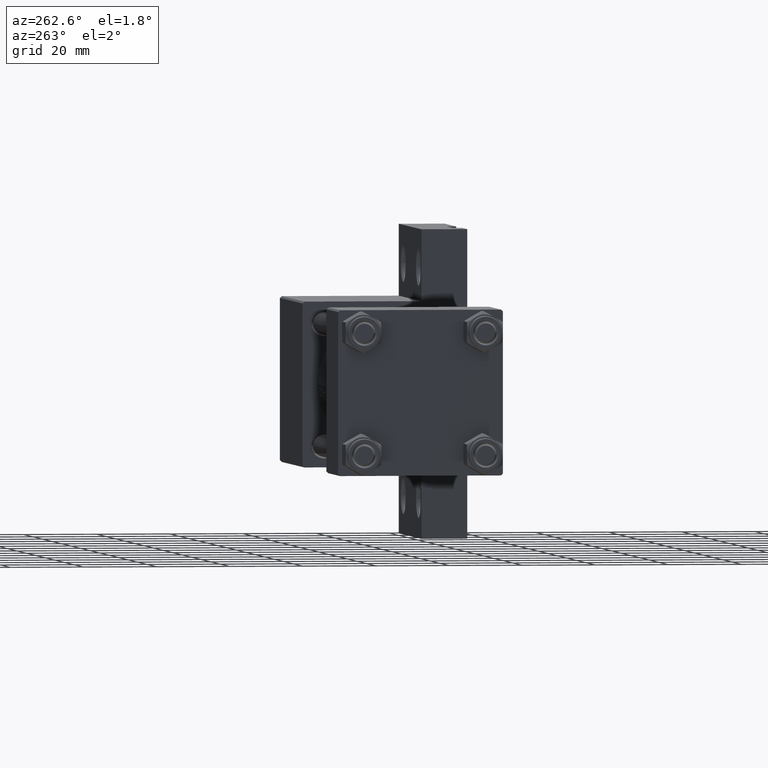
[diagram: clean part render]
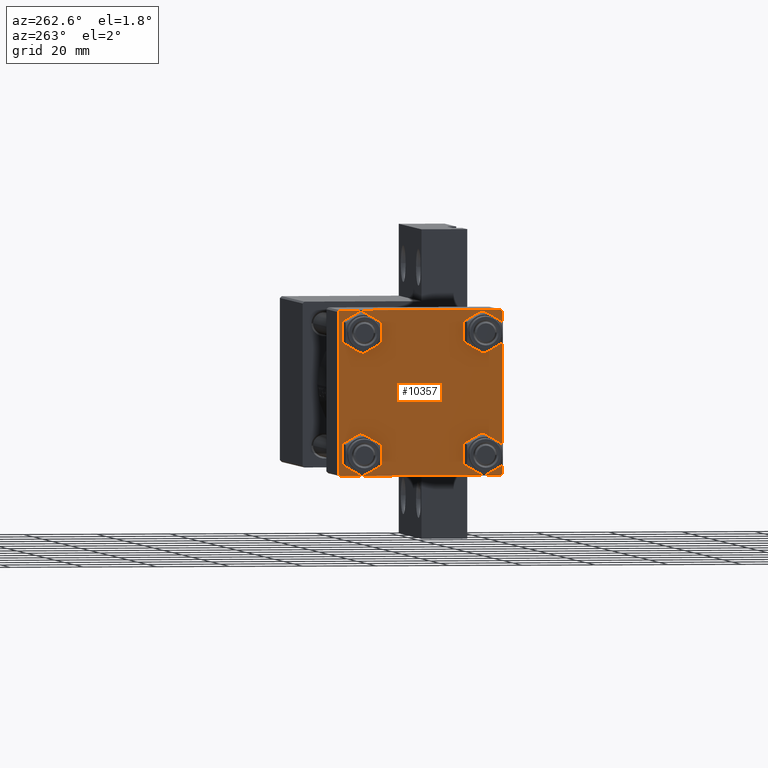
[diagram: same view with one face highlighted and labeled with its STEP entity id]
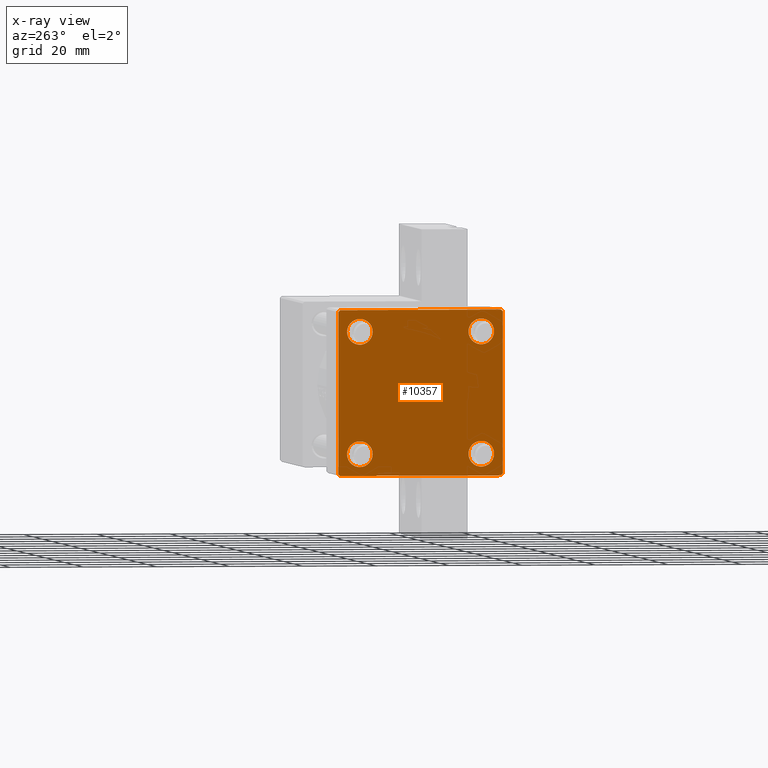
[diagram: x-ray of the same camera — body ghosted, the highlighted face saturated]
A machine part, auxiliary view. The second image highlights one B-rep face of the part: STEP entity #10357.
The next image is the same camera in x-ray: the body ghosted, the highlighted face saturated — about 0% of this face is hidden behind the body in this view.
In plain terms, the highlighted planar face has unit normal (-1, 0, -0).
Its self-contained STEP definition (entity closure, byte-faithful):
#89 = CARTESIAN_POINT ( 'NONE',  ( 0.000000000000000000, 0.000000000000000000, 0.000000000000000000 ) ) ;
#125 = CARTESIAN_POINT ( 'NONE',  ( 0.000000000000000000, 16.59999999999999787, 16.60000000000000497 ) ) ;
#600 = AXIS2_PLACEMENT_3D ( 'NONE', #10204, #14349, #39929 ) ;
#1617 = VECTOR ( 'NONE', #31725, 1000.000000000000000 ) ;
#1873 = ORIENTED_EDGE ( 'NONE', *, *, #11211, .T. ) ;
#2253 = ORIENTED_EDGE ( 'NONE', *, *, #7017, .T. ) ;
#2759 = ORIENTED_EDGE ( 'NONE', *, *, #17640, .T. ) ;
#3006 = EDGE_CURVE ( 'NONE', #33302, #35933, #30662, .T. ) ;
#3169 = VERTEX_POINT ( 'NONE', #43528 ) ;
#4080 = VECTOR ( 'NONE', #4355, 1000.000000000000000 ) ;
#4355 = DIRECTION ( 'NONE',  ( 0.000000000000000000, -0.7071067811865426878, 0.7071067811865524577 ) ) ;
#4741 = ORIENTED_EDGE ( 'NONE', *, *, #3006, .T. ) ;
#4862 = CARTESIAN_POINT ( 'NONE',  ( 0.000000000000000000, -16.59999999999999076, -16.60000000000000853 ) ) ;
#4898 = LINE ( 'NONE', #35095, #19236 ) ;
#5266 = CARTESIAN_POINT ( 'NONE',  ( 0.000000000000000000, 22.50000000000000000, -21.99999999999996803 ) ) ;
#5617 = VERTEX_POINT ( 'NONE', #36906 ) ;
#6101 = CIRCLE ( 'NONE', #33339, 3.499999999999996003 ) ;
#6234 = VERTEX_POINT ( 'NONE', #5266 ) ;
#7017 = EDGE_CURVE ( 'NONE', #15912, #12933, #8506, .T. ) ;
#7386 = CARTESIAN_POINT ( 'NONE',  ( 0.000000000000000000, 21.99999999999999289, -22.49999999999999645 ) ) ;
#7435 = DIRECTION ( 'NONE',  ( 0.000000000000000000, 0.000000000000000000, 1.000000000000000000 ) ) ;
#7713 = ORIENTED_EDGE ( 'NONE', *, *, #29443, .T. ) ;
#8506 = CIRCLE ( 'NONE', #11641, 3.499999999999996003 ) ;
#8738 = CARTESIAN_POINT ( 'NONE',  ( 0.000000000000000000, 22.24999999999999645, 22.24999999999999645 ) ) ;
#9051 = CARTESIAN_POINT ( 'NONE',  ( 0.000000000000000000, 16.59999999999999787, -13.10000000000000675 ) ) ;
#9585 = CARTESIAN_POINT ( 'NONE',  ( 0.000000000000000000, -16.59999999999999076, 16.60000000000000853 ) ) ;
#10204 = CARTESIAN_POINT ( 'NONE',  ( 0.000000000000000000, -16.59999999999999076, 16.60000000000000853 ) ) ;
#10342 = CARTESIAN_POINT ( 'NONE',  ( 0.000000000000000000, -16.59999999999999076, -16.60000000000000853 ) ) ;
#10357 = ADVANCED_FACE ( 'NONE', ( #30290, #33950, #45139, #33717, #18615 ), #44426, .T. ) ;
#10771 = CARTESIAN_POINT ( 'NONE',  ( 0.000000000000000000, -22.50000000000000000, -21.99999999999997158 ) ) ;
#10806 = AXIS2_PLACEMENT_3D ( 'NONE', #9585, #24456, #35652 ) ;
#10923 = EDGE_LOOP ( 'NONE', ( #1873, #2759 ) ) ;
#10977 = ORIENTED_EDGE ( 'NONE', *, *, #41991, .F. ) ;
#11211 = EDGE_CURVE ( 'NONE', #3169, #22177, #23306, .T. ) ;
#11219 = CIRCLE ( 'NONE', #33000, 3.499999999999996003 ) ;
#11292 = DIRECTION ( 'NONE',  ( -1.000000000000000000, 0.000000000000000000, -0.000000000000000000 ) ) ;
#11641 = AXIS2_PLACEMENT_3D ( 'NONE', #46806, #35841, #13443 ) ;
#12658 = CARTESIAN_POINT ( 'NONE',  ( 0.000000000000000000, -21.99999999999997158, -22.50000000000000711 ) ) ;
#12933 = VERTEX_POINT ( 'NONE', #9051 ) ;
#13041 = CARTESIAN_POINT ( 'NONE',  ( 0.000000000000000000, 16.59999999999999787, -16.60000000000000497 ) ) ;
#13280 = DIRECTION ( 'NONE',  ( 0.000000000000000000, 0.000000000000000000, 1.000000000000000000 ) ) ;
#13443 = DIRECTION ( 'NONE',  ( 0.000000000000000000, 0.000000000000000000, 1.000000000000000000 ) ) ;
#13521 = DIRECTION ( 'NONE',  ( 1.000000000000000000, -0.000000000000000000, 0.000000000000000000 ) ) ;
#14349 = DIRECTION ( 'NONE',  ( 1.000000000000000000, -0.000000000000000000, 0.000000000000000000 ) ) ;
#14595 = EDGE_CURVE ( 'NONE', #5617, #33031, #11219, .T. ) ;
#14967 = DIRECTION ( 'NONE',  ( -0.000000000000000000, 0.000000000000000000, 1.000000000000000000 ) ) ;
#15185 = CARTESIAN_POINT ( 'NONE',  ( 0.000000000000000000, -21.99999999999997868, 22.50000000000000000 ) ) ;
#15912 = VERTEX_POINT ( 'NONE', #40742 ) ;
#16346 = EDGE_CURVE ( 'NONE', #31173, #30288, #17018, .T. ) ;
#16812 = DIRECTION ( 'NONE',  ( 1.000000000000000000, -0.000000000000000000, 0.000000000000000000 ) ) ;
#16837 = ORIENTED_EDGE ( 'NONE', *, *, #18199, .F. ) ;
#16901 = CARTESIAN_POINT ( 'NONE',  ( 0.000000000000000000, 16.59999999999999787, 20.10000000000000142 ) ) ;
#17018 = LINE ( 'NONE', #8738, #20585 ) ;
#17385 = DIRECTION ( 'NONE',  ( -0.000000000000000000, 0.7071067811865525687, 0.7071067811865425767 ) ) ;
#17467 = CIRCLE ( 'NONE', #20551, 3.499999999999996003 ) ;
#17640 = EDGE_CURVE ( 'NONE', #22177, #3169, #17467, .T. ) ;
#17863 = CIRCLE ( 'NONE', #10806, 3.499999999999996003 ) ;
#18033 = VERTEX_POINT ( 'NONE', #15185 ) ;
#18199 = EDGE_CURVE ( 'NONE', #31173, #18033, #24088, .T. ) ;
#18615 = FACE_OUTER_BOUND ( 'NONE', #29921, .T. ) ;
#18694 = ORIENTED_EDGE ( 'NONE', *, *, #33966, .T. ) ;
#19236 = VECTOR ( 'NONE', #27301, 1000.000000000000000 ) ;
#19728 = DIRECTION ( 'NONE',  ( 1.000000000000000000, -0.000000000000000000, 0.000000000000000000 ) ) ;
#19914 = CARTESIAN_POINT ( 'NONE',  ( 0.000000000000000000, -16.59999999999999076, -20.10000000000000497 ) ) ;
#19972 = CARTESIAN_POINT ( 'NONE',  ( 0.000000000000000000, 16.59999999999999787, 16.60000000000000497 ) ) ;
#20284 = VERTEX_POINT ( 'NONE', #7386 ) ;
#20407 = ORIENTED_EDGE ( 'NONE', *, *, #30701, .T. ) ;
#20551 = AXIS2_PLACEMENT_3D ( 'NONE', #10342, #21323, #40306 ) ;
#20585 = VECTOR ( 'NONE', #32109, 1000.000000000000114 ) ;
#20615 = EDGE_CURVE ( 'NONE', #30288, #6234, #34359, .T. ) ;
#20775 = AXIS2_PLACEMENT_3D ( 'NONE', #125, #21564, #7435 ) ;
#21052 = AXIS2_PLACEMENT_3D ( 'NONE', #89, #11292, #14967 ) ;
#21323 = DIRECTION ( 'NONE',  ( 1.000000000000000000, -0.000000000000000000, 0.000000000000000000 ) ) ;
#21382 = VERTEX_POINT ( 'NONE', #23205 ) ;
#21386 = EDGE_LOOP ( 'NONE', ( #40497, #2253 ) ) ;
#21564 = DIRECTION ( 'NONE',  ( 1.000000000000000000, -0.000000000000000000, 0.000000000000000000 ) ) ;
#22177 = VERTEX_POINT ( 'NONE', #19914 ) ;
#22751 = DIRECTION ( 'NONE',  ( 0.000000000000000000, -1.000000000000000000, -2.312964634635742957E-16 ) ) ;
#23205 = CARTESIAN_POINT ( 'NONE',  ( 0.000000000000000000, -16.59999999999999076, 13.10000000000001030 ) ) ;
#23306 = CIRCLE ( 'NONE', #37331, 3.499999999999996003 ) ;
#23319 = CARTESIAN_POINT ( 'NONE',  ( 0.000000000000000000, 22.50000000000000000, 21.99999999999999645 ) ) ;
#23842 = EDGE_CURVE ( 'NONE', #6234, #20284, #4898, .T. ) ;
#24088 = LINE ( 'NONE', #39673, #27534 ) ;
#24351 = ORIENTED_EDGE ( 'NONE', *, *, #20615, .T. ) ;
#24363 = EDGE_CURVE ( 'NONE', #20284, #33302, #25669, .T. ) ;
#24456 = DIRECTION ( 'NONE',  ( 1.000000000000000000, -0.000000000000000000, 0.000000000000000000 ) ) ;
#24582 = EDGE_CURVE ( 'NONE', #31371, #18033, #43423, .T. ) ;
#24583 = DIRECTION ( 'NONE',  ( 0.000000000000000000, 0.000000000000000000, 1.000000000000000000 ) ) ;
#25669 = LINE ( 'NONE', #26162, #47969 ) ;
#26076 = CARTESIAN_POINT ( 'NONE',  ( 0.000000000000000000, 22.50000000000000000, 22.50000000000000355 ) ) ;
#26162 = CARTESIAN_POINT ( 'NONE',  ( 0.000000000000000000, 22.50000000000000000, -22.49999999999999645 ) ) ;
#27301 = DIRECTION ( 'NONE',  ( -0.000000000000000000, -0.7071067811865426878, -0.7071067811865524577 ) ) ;
#27534 = VECTOR ( 'NONE', #31653, 1000.000000000000000 ) ;
#29443 = EDGE_CURVE ( 'NONE', #33031, #5617, #35550, .T. ) ;
#29567 = EDGE_LOOP ( 'NONE', ( #7713, #39388 ) ) ;
#29921 = EDGE_LOOP ( 'NONE', ( #24351, #33670, #39376, #4741, #10977, #43192, #16837, #44833 ) ) ;
#30244 = CARTESIAN_POINT ( 'NONE',  ( 0.000000000000000000, -16.59999999999999076, 20.10000000000000853 ) ) ;
#30288 = VERTEX_POINT ( 'NONE', #23319 ) ;
#30290 = FACE_BOUND ( 'NONE', #41875, .T. ) ;
#30662 = LINE ( 'NONE', #42103, #4080 ) ;
#30701 = EDGE_CURVE ( 'NONE', #21382, #42745, #43407, .T. ) ;
#31173 = VERTEX_POINT ( 'NONE', #37064 ) ;
#31371 = VERTEX_POINT ( 'NONE', #35332 ) ;
#31653 = DIRECTION ( 'NONE',  ( 0.000000000000000000, -1.000000000000000000, -7.709882115452476934E-17 ) ) ;
#31725 = DIRECTION ( 'NONE',  ( 0.000000000000000000, 0.000000000000000000, -1.000000000000000000 ) ) ;
#31908 = EDGE_CURVE ( 'NONE', #12933, #15912, #6101, .T. ) ;
#32109 = DIRECTION ( 'NONE',  ( 0.000000000000000000, 0.7071067811865474617, -0.7071067811865474617 ) ) ;
#33000 = AXIS2_PLACEMENT_3D ( 'NONE', #19972, #16812, #24583 ) ;
#33031 = VERTEX_POINT ( 'NONE', #16901 ) ;
#33302 = VERTEX_POINT ( 'NONE', #12658 ) ;
#33339 = AXIS2_PLACEMENT_3D ( 'NONE', #13041, #13521, #13280 ) ;
#33670 = ORIENTED_EDGE ( 'NONE', *, *, #23842, .T. ) ;
#33717 = FACE_BOUND ( 'NONE', #29567, .T. ) ;
#33950 = FACE_BOUND ( 'NONE', #10923, .T. ) ;
#33966 = EDGE_CURVE ( 'NONE', #42745, #21382, #17863, .T. ) ;
#34119 = DIRECTION ( 'NONE',  ( 0.000000000000000000, 0.000000000000000000, -1.000000000000000000 ) ) ;
#34359 = LINE ( 'NONE', #26076, #36181 ) ;
#35095 = CARTESIAN_POINT ( 'NONE',  ( 0.000000000000000000, 22.25000000000014566, -22.24999999999984013 ) ) ;
#35332 = CARTESIAN_POINT ( 'NONE',  ( 0.000000000000000000, -22.50000000000000000, 22.00000000000000000 ) ) ;
#35550 = CIRCLE ( 'NONE', #20775, 3.499999999999996003 ) ;
#35652 = DIRECTION ( 'NONE',  ( 0.000000000000000000, 0.000000000000000000, 1.000000000000000000 ) ) ;
#35841 = DIRECTION ( 'NONE',  ( 1.000000000000000000, -0.000000000000000000, 0.000000000000000000 ) ) ;
#35933 = VERTEX_POINT ( 'NONE', #10771 ) ;
#36181 = VECTOR ( 'NONE', #34119, 1000.000000000000000 ) ;
#36906 = CARTESIAN_POINT ( 'NONE',  ( 0.000000000000000000, 16.59999999999999787, 13.10000000000000675 ) ) ;
#37064 = CARTESIAN_POINT ( 'NONE',  ( 0.000000000000000000, 21.99999999999999289, 22.50000000000000355 ) ) ;
#37331 = AXIS2_PLACEMENT_3D ( 'NONE', #4862, #19728, #41895 ) ;
#39376 = ORIENTED_EDGE ( 'NONE', *, *, #24363, .T. ) ;
#39388 = ORIENTED_EDGE ( 'NONE', *, *, #14595, .T. ) ;
#39673 = CARTESIAN_POINT ( 'NONE',  ( 0.000000000000000000, 22.50000000000000000, 22.50000000000000355 ) ) ;
#39929 = DIRECTION ( 'NONE',  ( 0.000000000000000000, 0.000000000000000000, 1.000000000000000000 ) ) ;
#40306 = DIRECTION ( 'NONE',  ( 0.000000000000000000, 0.000000000000000000, 1.000000000000000000 ) ) ;
#40497 = ORIENTED_EDGE ( 'NONE', *, *, #31908, .T. ) ;
#40742 = CARTESIAN_POINT ( 'NONE',  ( 0.000000000000000000, 16.59999999999999787, -20.10000000000000142 ) ) ;
#41875 = EDGE_LOOP ( 'NONE', ( #18694, #20407 ) ) ;
#41895 = DIRECTION ( 'NONE',  ( 0.000000000000000000, 0.000000000000000000, 1.000000000000000000 ) ) ;
#41991 = EDGE_CURVE ( 'NONE', #31371, #35933, #42687, .T. ) ;
#42103 = CARTESIAN_POINT ( 'NONE',  ( 0.000000000000000000, -22.25000000000014566, -22.24999999999984013 ) ) ;
#42687 = LINE ( 'NONE', #43172, #1617 ) ;
#42745 = VERTEX_POINT ( 'NONE', #30244 ) ;
#43172 = CARTESIAN_POINT ( 'NONE',  ( 0.000000000000000000, -22.50000000000000000, 22.50000000000000000 ) ) ;
#43192 = ORIENTED_EDGE ( 'NONE', *, *, #24582, .T. ) ;
#43407 = CIRCLE ( 'NONE', #600, 3.499999999999996003 ) ;
#43423 = LINE ( 'NONE', #46839, #46477 ) ;
#43528 = CARTESIAN_POINT ( 'NONE',  ( 0.000000000000000000, -16.59999999999999076, -13.10000000000001030 ) ) ;
#44426 = PLANE ( 'NONE',  #21052 ) ;
#44833 = ORIENTED_EDGE ( 'NONE', *, *, #16346, .T. ) ;
#45139 = FACE_BOUND ( 'NONE', #21386, .T. ) ;
#46477 = VECTOR ( 'NONE', #17385, 999.9999999999998863 ) ;
#46806 = CARTESIAN_POINT ( 'NONE',  ( 0.000000000000000000, 16.59999999999999787, -16.60000000000000497 ) ) ;
#46839 = CARTESIAN_POINT ( 'NONE',  ( -0.000000000000000000, -22.24999999999984013, 22.25000000000015277 ) ) ;
#47969 = VECTOR ( 'NONE', #22751, 1000.000000000000000 ) ;